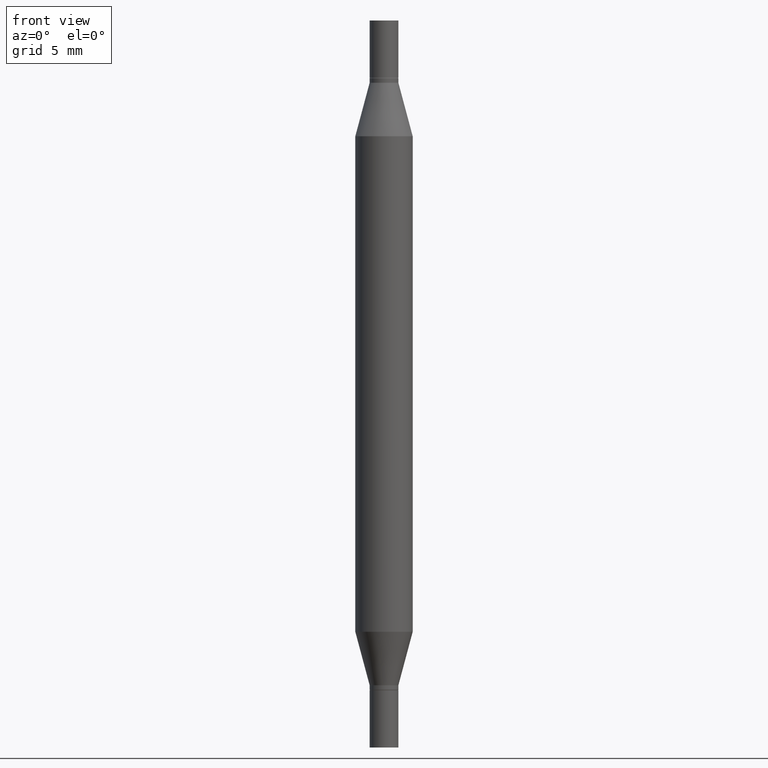
[diagram: clean part render]
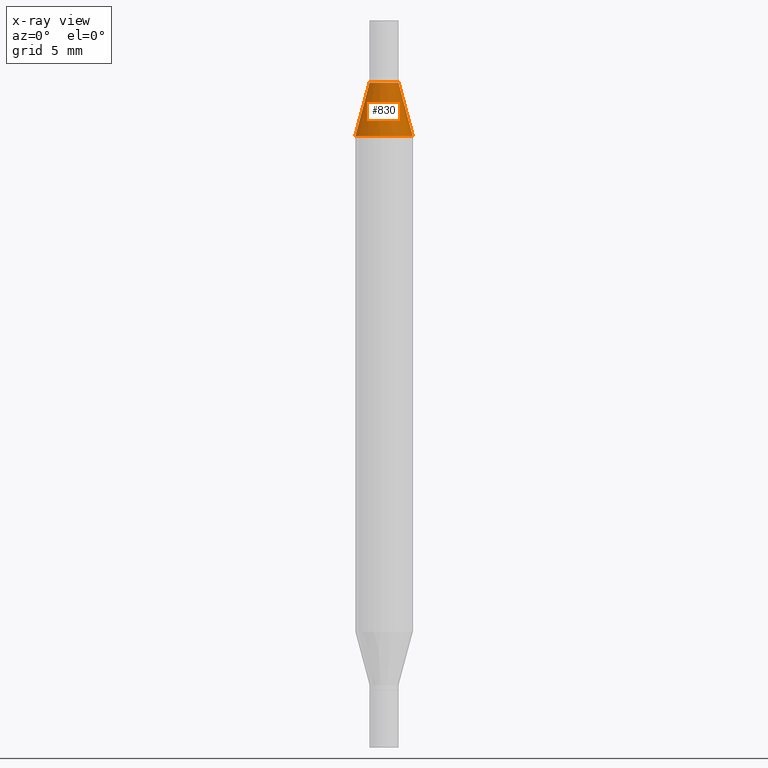
[diagram: x-ray — body ghosted, one internal face saturated and labeled with its STEP entity id]
A machine part, front view, then the same camera in x-ray: the body is ghosted and one INTERNAL B-rep face — a face not visible from any outside direction — is saturated and labeled: STEP entity #830.
In plain terms, the highlighted conical surface has half-angle 15 deg.
Its self-contained STEP definition (entity closure, byte-faithful):
#3 = ORIENTED_EDGE ( 'NONE', *, *, #811, .T. ) ;
#14 = DIRECTION ( 'NONE',  ( -0.2588190451025219607, -1.597197180879709199E-15, -0.9659258262890679791 ) ) ;
#66 = EDGE_LOOP ( 'NONE', ( #357, #3, #912, #146 ) ) ;
#86 = CARTESIAN_POINT ( 'NONE',  ( -0.02954999999999991661, -2.439811505568221169E-16, -0.1280000000000001137 ) ) ;
#93 = FACE_OUTER_BOUND ( 'NONE', #66, .T. ) ;
#113 = AXIS2_PLACEMENT_3D ( 'NONE', #288, #446, #655 ) ;
#118 = LINE ( 'NONE', #648, #404 ) ;
#126 = CARTESIAN_POINT ( 'NONE',  ( -0.05904999999999999832, -4.260284833459826385E-16, -0.2380954988232817371 ) ) ;
#136 = AXIS2_PLACEMENT_3D ( 'NONE', #851, #431, #492 ) ;
#143 = EDGE_CURVE ( 'NONE', #595, #708, #579, .T. ) ;
#146 = ORIENTED_EDGE ( 'NONE', *, *, #452, .F. ) ;
#152 = EDGE_CURVE ( 'NONE', #897, #850, #842, .T. ) ;
#270 = CONICAL_SURFACE ( 'NONE', #136, 0.02954999999999991661, 0.2617993877991506846 ) ;
#288 = CARTESIAN_POINT ( 'NONE',  ( 3.345645873741884627E-29, -4.467088663909703532E-16, -0.1280000000000001137 ) ) ;
#300 = VECTOR ( 'NONE', #14, 39.37007874015748143 ) ;
#318 = LINE ( 'NONE', #86, #300 ) ;
#356 = CARTESIAN_POINT ( 'NONE',  ( 3.076410765668157214E-29, -8.311408901143909150E-16, -0.2380954988232817371 ) ) ;
#357 = ORIENTED_EDGE ( 'NONE', *, *, #152, .F. ) ;
#358 = CARTESIAN_POINT ( 'NONE',  ( -0.02954999999999991661, -2.275696666105042854E-16, -0.1280000000000001137 ) ) ;
#374 = AXIS2_PLACEMENT_3D ( 'NONE', #356, #669, #881 ) ;
#404 = VECTOR ( 'NONE', #810, 39.37007874015748143 ) ;
#431 = DIRECTION ( 'NONE',  ( -2.445468806185136597E-29, -3.491805094961124077E-15, -1.000000000000000000 ) ) ;
#446 = DIRECTION ( 'NONE',  ( 2.445468806185136597E-29, 3.491805094961124077E-15, 1.000000000000000000 ) ) ;
#452 = EDGE_CURVE ( 'NONE', #850, #708, #118, .T. ) ;
#492 = DIRECTION ( 'NONE',  ( 1.000000000000000000, -6.982962677686265133E-15, 0.000000000000000000 ) ) ;
#579 = CIRCLE ( 'NONE', #374, 0.05904999999999999832 ) ;
#595 = VERTEX_POINT ( 'NONE', #126 ) ;
#616 = CARTESIAN_POINT ( 'NONE',  ( 0.05904999999999999832, -1.243484836231765441E-15, -0.2380954988232817371 ) ) ;
#648 = CARTESIAN_POINT ( 'NONE',  ( 0.02954999999999991661, -6.530554135165988789E-16, -0.1280000000000001137 ) ) ;
#655 = DIRECTION ( 'NONE',  ( 1.000000000000000000, -6.982962677686265133E-15, 0.000000000000000000 ) ) ;
#669 = DIRECTION ( 'NONE',  ( 2.445468806185136597E-29, 3.491805094961124077E-15, 1.000000000000000000 ) ) ;
#708 = VERTEX_POINT ( 'NONE', #616 ) ;
#810 = DIRECTION ( 'NONE',  ( 0.2588190451025219607, -5.180148453816010357E-15, -0.9659258262890679791 ) ) ;
#811 = EDGE_CURVE ( 'NONE', #897, #595, #318, .T. ) ;
#830 = ADVANCED_FACE ( 'NONE', ( #93 ), #270, .T. ) ;
#842 = CIRCLE ( 'NONE', #113, 0.02954999999999991661 ) ;
#850 = VERTEX_POINT ( 'NONE', #876 ) ;
#851 = CARTESIAN_POINT ( 'NONE',  ( 3.345645873741884627E-29, -4.467088663909703532E-16, -0.1280000000000001137 ) ) ;
#876 = CARTESIAN_POINT ( 'NONE',  ( 0.02954999999999991661, -6.530554135165988789E-16, -0.1280000000000001137 ) ) ;
#881 = DIRECTION ( 'NONE',  ( 1.000000000000000000, -6.982962677686265133E-15, 0.000000000000000000 ) ) ;
#897 = VERTEX_POINT ( 'NONE', #358 ) ;
#912 = ORIENTED_EDGE ( 'NONE', *, *, #143, .T. ) ;